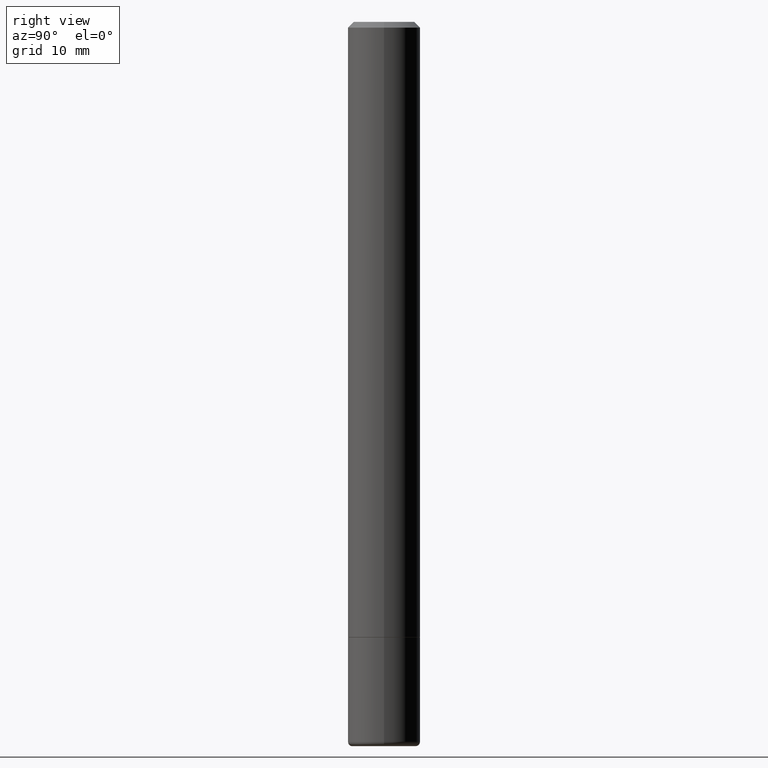
[diagram: clean part render]
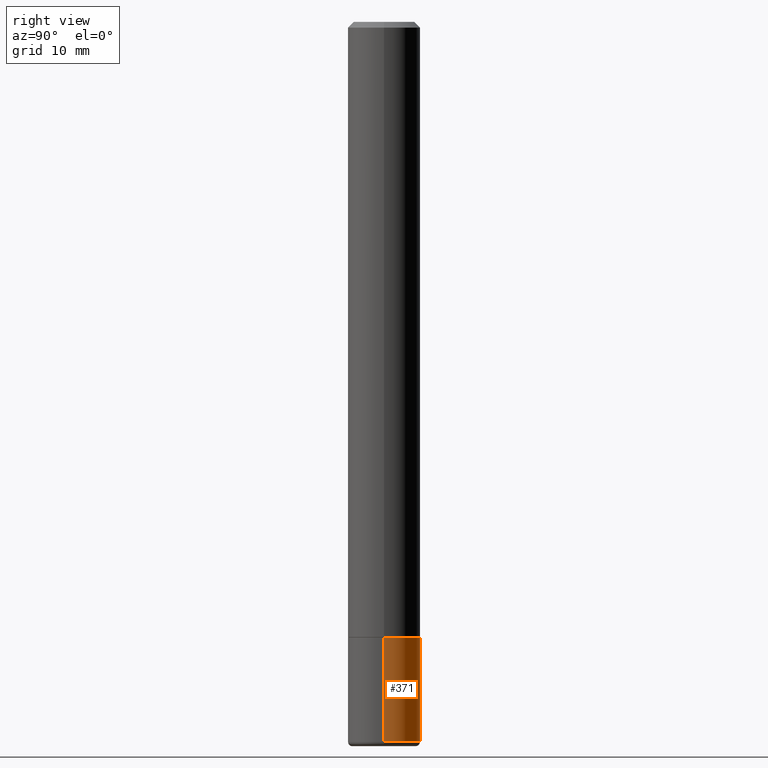
[diagram: same view with one face highlighted and labeled with its STEP entity id]
A machine part, right view. The second image highlights one B-rep face of the part: STEP entity #371.
In plain terms, the highlighted cylindrical surface (edge-blend (fillet) strip) has radius 3.175 mm, axis along (-0, 0, 1).
Its self-contained STEP definition (entity closure, byte-faithful):
#27 = ORIENTED_EDGE ( 'NONE', *, *, #78, .T. ) ;
#50 = VERTEX_POINT ( 'NONE', #416 ) ;
#52 = EDGE_CURVE ( 'NONE', #61, #50, #186, .T. ) ;
#61 = VERTEX_POINT ( 'NONE', #228 ) ;
#69 = DIRECTION ( 'NONE',  ( -2.445468806185136877E-29, 3.491481338843145188E-15, 1.000000000000000000 ) ) ;
#73 = DIRECTION ( 'NONE',  ( 1.000000000000000000, -6.982962677686266711E-15, 4.876176775795935793E-29 ) ) ;
#78 = EDGE_CURVE ( 'NONE', #481, #170, #112, .T. ) ;
#80 = DIRECTION ( 'NONE',  ( -2.445468806185136597E-29, 3.491481338843145583E-15, 1.000000000000000000 ) ) ;
#81 = VECTOR ( 'NONE', #453, 39.37007874015748143 ) ;
#94 = ORIENTED_EDGE ( 'NONE', *, *, #438, .T. ) ;
#106 = CARTESIAN_POINT ( 'NONE',  ( 0.000000000000000000, 0.000000000000000000, 0.000000000000000000 ) ) ;
#112 = LINE ( 'NONE', #221, #484 ) ;
#170 = VERTEX_POINT ( 'NONE', #450 ) ;
#186 = LINE ( 'NONE', #408, #81 ) ;
#200 = CIRCLE ( 'NONE', #477, 0.1250000000000000278 ) ;
#221 = CARTESIAN_POINT ( 'NONE',  ( -0.1249999999999998335, 8.881784197001240490E-16, -6.148668862818623819E-30 ) ) ;
#222 = AXIS2_PLACEMENT_3D ( 'NONE', #106, #417, #73 ) ;
#228 = CARTESIAN_POINT ( 'NONE',  ( 0.1250000000000000278, -9.549203455909665495E-15, -2.485000571154037718 ) ) ;
#234 = DIRECTION ( 'NONE',  ( 1.000000000000000000, -6.982962677686269077E-15, 0.000000000000000000 ) ) ;
#236 = CARTESIAN_POINT ( 'NONE',  ( 6.076991380109446545E-29, -8.676333121198880578E-15, -2.485000571154037718 ) ) ;
#288 = ORIENTED_EDGE ( 'NONE', *, *, #441, .F. ) ;
#296 = CYLINDRICAL_SURFACE ( 'NONE', #222, 0.1249999999999998335 ) ;
#298 = ORIENTED_EDGE ( 'NONE', *, *, #52, .F. ) ;
#309 = DIRECTION ( 'NONE',  ( 1.000000000000000000, -6.982962677686269077E-15, 0.000000000000000000 ) ) ;
#345 = DIRECTION ( 'NONE',  ( -2.445468806185136597E-29, 3.491481338843145583E-15, 1.000000000000000000 ) ) ;
#350 = CARTESIAN_POINT ( 'NONE',  ( 5.196621213143416389E-29, -7.419397845041685201E-15, -2.125000000000000444 ) ) ;
#371 = ADVANCED_FACE ( 'NONE', ( #461 ), #296, .T. ) ;
#408 = CARTESIAN_POINT ( 'NONE',  ( 0.1249999999999998335, -8.728703347107821555E-16, 6.095220969744911333E-30 ) ) ;
#416 = CARTESIAN_POINT ( 'NONE',  ( 0.1249999999999996253, -8.292268179752466962E-15, -2.125000000000000444 ) ) ;
#417 = DIRECTION ( 'NONE',  ( -2.445468806185136597E-29, 3.491481338843145583E-15, 1.000000000000000000 ) ) ;
#420 = CIRCLE ( 'NONE', #458, 0.1249999999999996253 ) ;
#431 = CARTESIAN_POINT ( 'NONE',  ( -0.1250000000000000278, -7.159687063420157657E-15, -2.485000571154037718 ) ) ;
#438 = EDGE_CURVE ( 'NONE', #61, #481, #200, .T. ) ;
#441 = EDGE_CURVE ( 'NONE', #50, #170, #420, .T. ) ;
#450 = CARTESIAN_POINT ( 'NONE',  ( -0.1249999999999996253, -7.159687063420159235E-15, -2.125000000000000444 ) ) ;
#452 = EDGE_LOOP ( 'NONE', ( #94, #27, #288, #298 ) ) ;
#453 = DIRECTION ( 'NONE',  ( -2.445468806185136877E-29, 3.491481338843145188E-15, 1.000000000000000000 ) ) ;
#458 = AXIS2_PLACEMENT_3D ( 'NONE', #350, #80, #234 ) ;
#461 = FACE_OUTER_BOUND ( 'NONE', #452, .T. ) ;
#477 = AXIS2_PLACEMENT_3D ( 'NONE', #236, #345, #309 ) ;
#481 = VERTEX_POINT ( 'NONE', #431 ) ;
#484 = VECTOR ( 'NONE', #69, 39.37007874015748143 ) ;